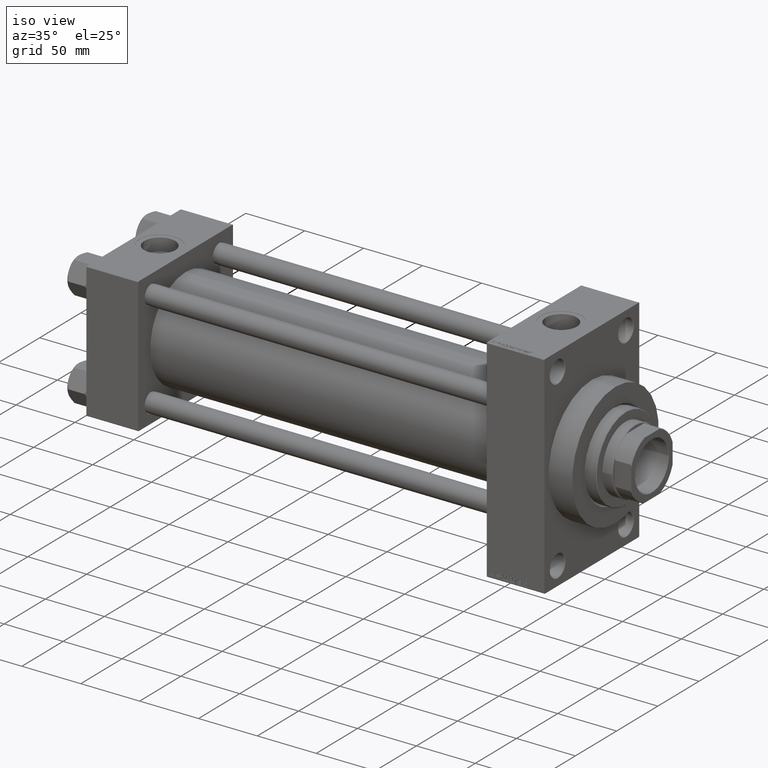
[diagram: clean part render]
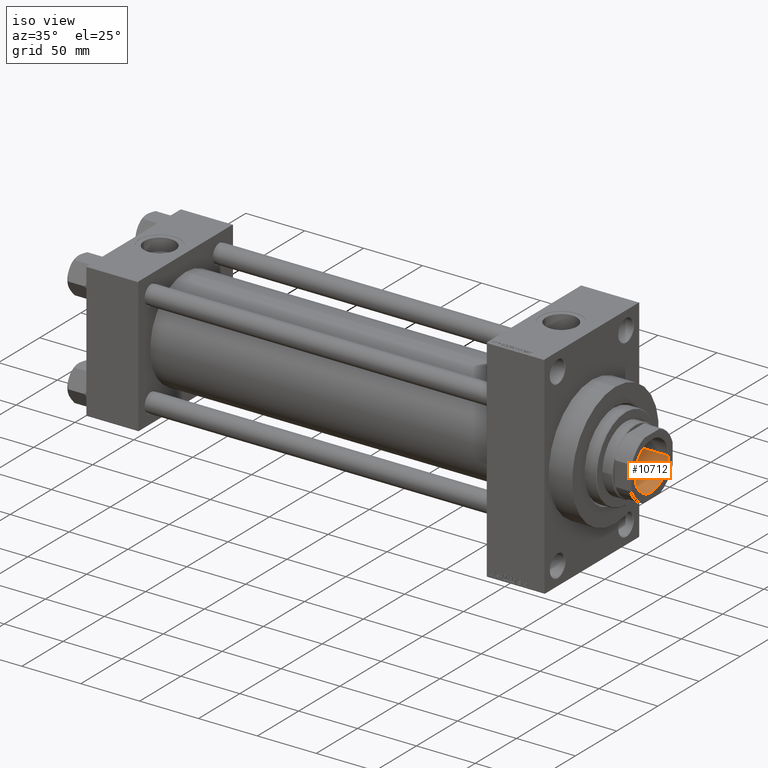
[diagram: same view with one face highlighted and labeled with its STEP entity id]
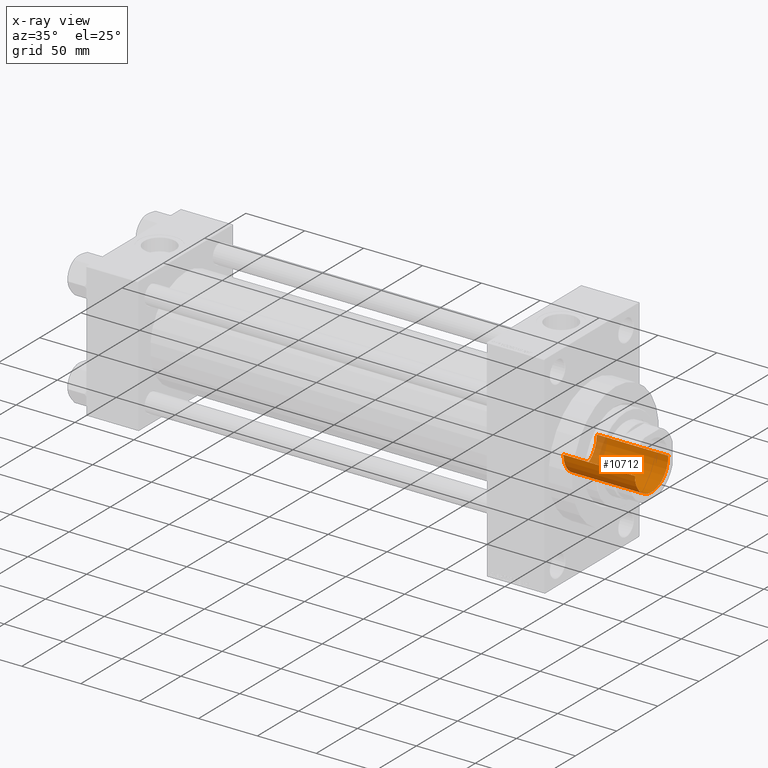
[diagram: x-ray of the same camera — body ghosted, the highlighted face saturated]
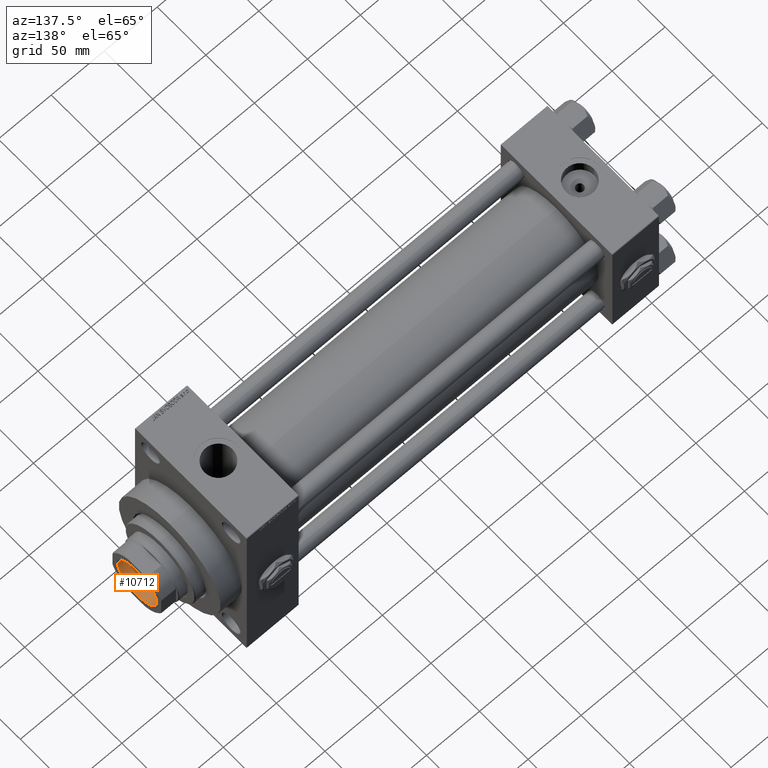
[diagram: same view with one face highlighted and labeled with its STEP entity id]
A machine part, iso view. The second image highlights one B-rep face of the part: STEP entity #10712.
The next image is the same camera in x-ray: the body ghosted, the highlighted face saturated — about 9% of this face is hidden behind the body in this view.
A second angle (auxiliary view) of the same face is appended — the face is thin or edge-on in the first view.
In plain terms, the highlighted cylindrical surface (edge-blend (fillet) strip) has radius 20.25 mm, axis along (1, 0, 0).
Its self-contained STEP definition (entity closure, byte-faithful):
#1825 = VECTOR ( 'NONE', #6365, 1000.000000000000000 ) ;
#2132 = AXIS2_PLACEMENT_3D ( 'NONE', #18869, #14337, #49599 ) ;
#2264 = CARTESIAN_POINT ( 'NONE',  ( -20.24999999999998934, 2.479909768273389117E-15, 335.0000000000000000 ) ) ;
#2931 = EDGE_CURVE ( 'NONE', #3592, #45991, #4718, .T. ) ;
#3592 = VERTEX_POINT ( 'NONE', #2264 ) ;
#4718 = LINE ( 'NONE', #20128, #47824 ) ;
#5218 = ORIENTED_EDGE ( 'NONE', *, *, #2931, .F. ) ;
#6365 = DIRECTION ( 'NONE',  ( -0.000000000000000000, -0.000000000000000000, 1.000000000000000000 ) ) ;
#7363 = CIRCLE ( 'NONE', #45209, 20.24999999999998934 ) ;
#7929 = DIRECTION ( 'NONE',  ( 1.000000000000000000, 0.000000000000000000, 0.000000000000000000 ) ) ;
#9167 = VERTEX_POINT ( 'NONE', #22349 ) ;
#9632 = DIRECTION ( 'NONE',  ( 1.000000000000000000, 0.000000000000000000, 0.000000000000000000 ) ) ;
#10712 = ADVANCED_FACE ( 'NONE', ( #15329 ), #14583, .F. ) ;
#13528 = ORIENTED_EDGE ( 'NONE', *, *, #30213, .F. ) ;
#14337 = DIRECTION ( 'NONE',  ( -0.000000000000000000, -0.000000000000000000, 1.000000000000000000 ) ) ;
#14583 = CYLINDRICAL_SURFACE ( 'NONE', #2132, 20.24999999999999289 ) ;
#15329 = FACE_OUTER_BOUND ( 'NONE', #32181, .T. ) ;
#16489 = CARTESIAN_POINT ( 'NONE',  ( 0.000000000000000000, 0.000000000000000000, 335.0000000000000000 ) ) ;
#18869 = CARTESIAN_POINT ( 'NONE',  ( 0.000000000000000000, 0.000000000000000000, 396.0000000000000000 ) ) ;
#18894 = CIRCLE ( 'NONE', #19679, 20.24999999999999289 ) ;
#18939 = CARTESIAN_POINT ( 'NONE',  ( -20.24999999999999289, 2.479909768273389511E-15, 395.7000000000000455 ) ) ;
#19679 = AXIS2_PLACEMENT_3D ( 'NONE', #28826, #44171, #9632 ) ;
#20128 = CARTESIAN_POINT ( 'NONE',  ( -20.24999999999999289, 2.479909768273389511E-15, 396.0000000000000000 ) ) ;
#22349 = CARTESIAN_POINT ( 'NONE',  ( 20.24999999999999289, 0.000000000000000000, 395.7000000000000455 ) ) ;
#25034 = CARTESIAN_POINT ( 'NONE',  ( 20.24999999999999289, 0.000000000000000000, 396.0000000000000000 ) ) ;
#25114 = ORIENTED_EDGE ( 'NONE', *, *, #36534, .T. ) ;
#28826 = CARTESIAN_POINT ( 'NONE',  ( 0.000000000000000000, 0.000000000000000000, 395.7000000000000455 ) ) ;
#29118 = CARTESIAN_POINT ( 'NONE',  ( 20.24999999999998934, 0.000000000000000000, 335.0000000000000000 ) ) ;
#30213 = EDGE_CURVE ( 'NONE', #39742, #3592, #7363, .T. ) ;
#31731 = DIRECTION ( 'NONE',  ( -0.000000000000000000, -0.000000000000000000, 1.000000000000000000 ) ) ;
#32181 = EDGE_LOOP ( 'NONE', ( #5218, #13528, #34601, #25114 ) ) ;
#33110 = EDGE_CURVE ( 'NONE', #39742, #9167, #47702, .T. ) ;
#34601 = ORIENTED_EDGE ( 'NONE', *, *, #33110, .T. ) ;
#36534 = EDGE_CURVE ( 'NONE', #9167, #45991, #18894, .T. ) ;
#39742 = VERTEX_POINT ( 'NONE', #29118 ) ;
#43455 = DIRECTION ( 'NONE',  ( -0.000000000000000000, -0.000000000000000000, 1.000000000000000000 ) ) ;
#44171 = DIRECTION ( 'NONE',  ( 0.000000000000000000, 0.000000000000000000, 1.000000000000000000 ) ) ;
#45209 = AXIS2_PLACEMENT_3D ( 'NONE', #16489, #43455, #7929 ) ;
#45991 = VERTEX_POINT ( 'NONE', #18939 ) ;
#47702 = LINE ( 'NONE', #25034, #1825 ) ;
#47824 = VECTOR ( 'NONE', #31731, 1000.000000000000000 ) ;
#49599 = DIRECTION ( 'NONE',  ( 1.000000000000000000, 0.000000000000000000, 0.000000000000000000 ) ) ;